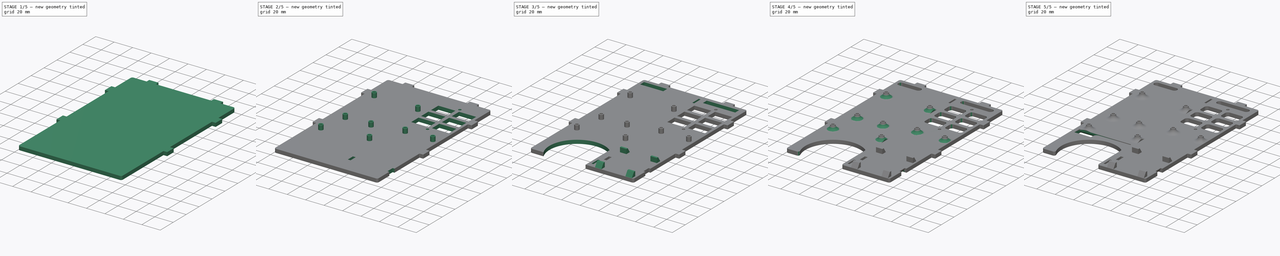
[diagram: build sequence overview — one tinted view per stage of 5, left to right]
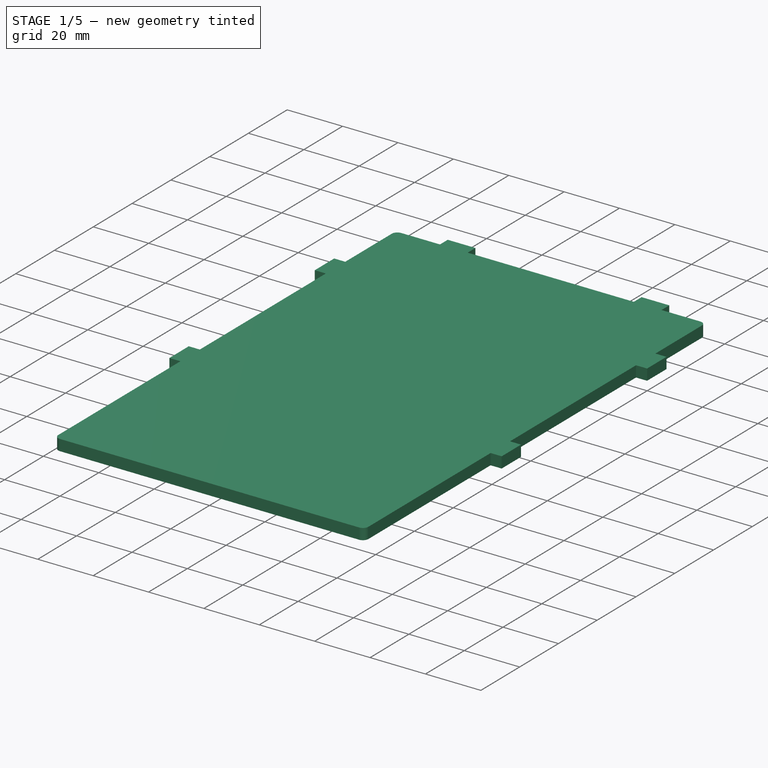
[diagram: stage 1 of 5 — iso view after this stage's code; geometry added in this stage tinted green]
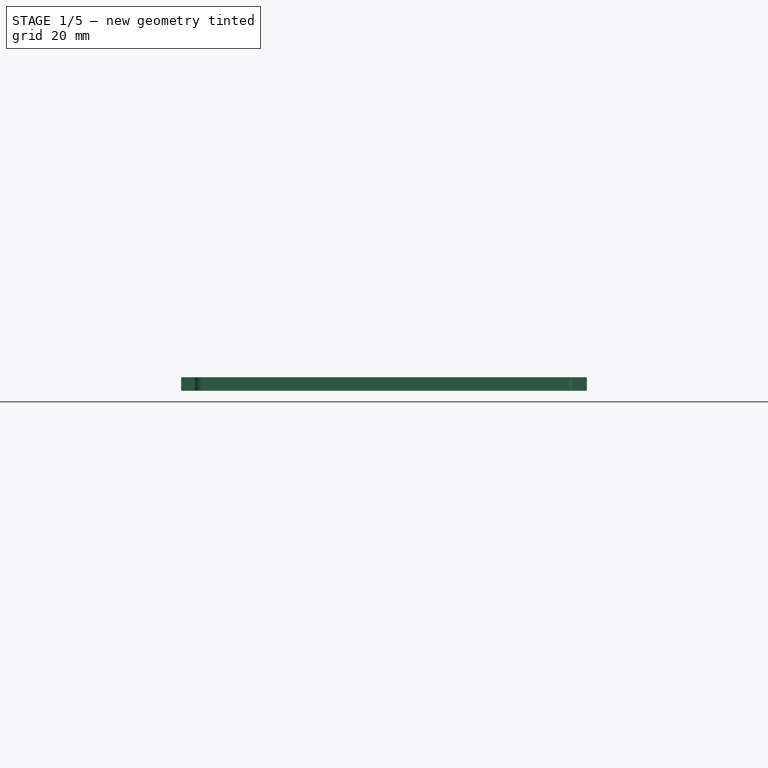
[diagram: stage 1 of 5 — front view after this stage's code; geometry added in this stage tinted green]
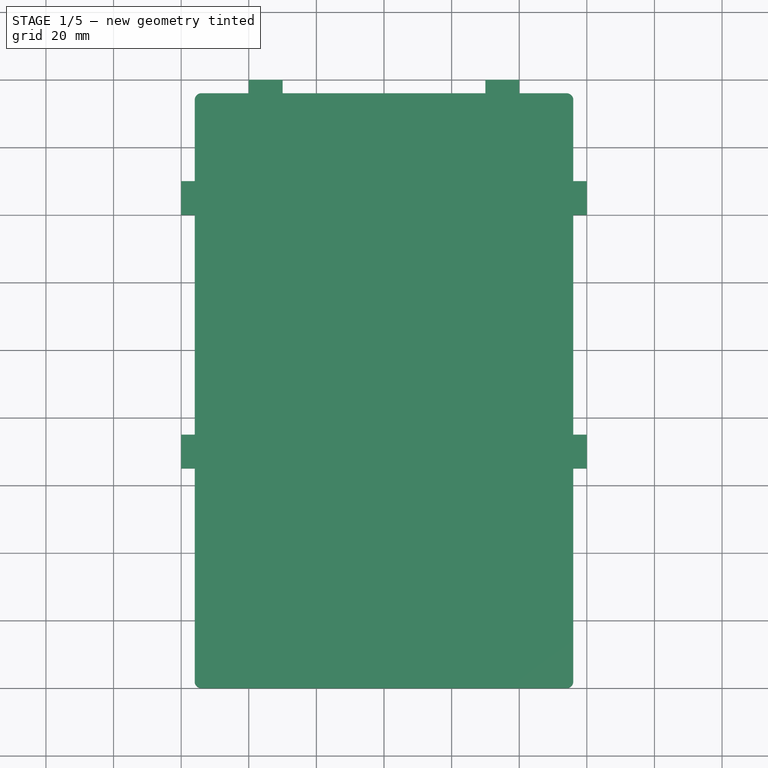
[diagram: stage 1 of 5 — top view after this stage's code; geometry added in this stage tinted green]
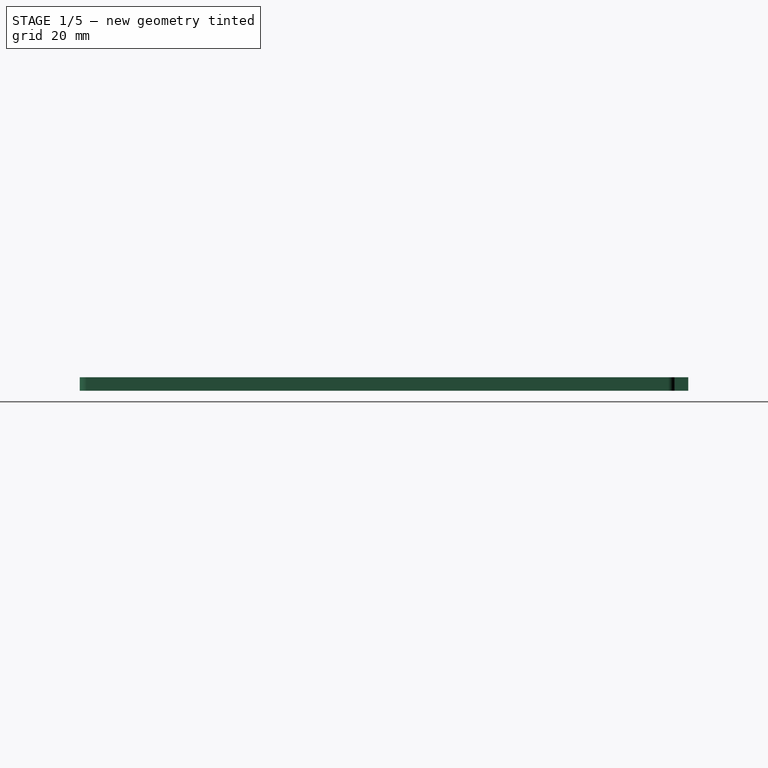
[diagram: stage 1 of 5 — right view after this stage's code; geometry added in this stage tinted green]
FCSTD DOCUMENT  (FreeCAD 0.18R16131 (Git))
Label: HBlock2_1
License: All rights reserved
LicenseURL: http://en.wikipedia.org/wiki/All_rights_reserved
objects: Sketcher::SketchObject×12, PartDesign::Pocket×8, PartDesign::Fillet×8, PartDesign::Plane×6, PartDesign::Pad×4, PartDesign::Draft×1, PartDesign::Body×1, App::Part×1, Part::FeaturePython×1
note: 53 computed .brp shape members not serialized (recipe doc carries the construction recipe); baked Part::Feature solids carry a one-line shape summary decoded from their .brp

FEATURE [Sketcher::SketchObject] Sketch
  MapMode = 5
  Support = -> [XY_Plane001]
  sketch-geometry (7):
    g0: LineSegment [constr] StartX=-60 StartY=0 StartZ=0 EndX=60 EndY=0 EndZ=0
    g1: LineSegment StartX=60 StartY=0 StartZ=0 EndX=60 EndY=120 EndZ=0
    g2: LineSegment StartX=60 StartY=120 StartZ=0 EndX=-60 EndY=120 EndZ=0
    g3: LineSegment StartX=-60 StartY=120 StartZ=0 EndX=-60 EndY=0 EndZ=0
    g4: LineSegment StartX=-60 StartY=0 StartZ=0 EndX=-60 EndY=-60 EndZ=0
    g5: LineSegment StartX=-60 StartY=-60 StartZ=0 EndX=60 EndY=-60 EndZ=0
    g6: LineSegment StartX=60 StartY=-60 StartZ=0 EndX=60 EndY=0 EndZ=0
  constraints (19):
    c: Coincident(g0,g1)
    c: Coincident(g1,g2)
    c: Coincident(g2,g3)
    c: Coincident(g3,g0)
    c: Horizontal(g0)
    c: Vertical(g1)
    c: Vertical(g3)
    c: PointOnObject(g0,g-1)
    c: Symmetric(g2,g1,g-2)
    c: Distance(g2) = 120
    c: Distance(g3) = 120
    c: Coincident(g4,g3)
    c: Vertical(g4)
    c: Coincident(g5,g4)
    c: Horizontal(g5)
    c: Coincident(g6,g5)
    c: Coincident(g6,g1)
    c: Vertical(g6)
    c: Distance(g4) = 60
FEATURE [PartDesign::Pad] Pad
  Length = 4
  Length2 = 100
  Midplane = true
  Profile = -> Sketch
  Type = 0
FEATURE [Sketcher::SketchObject] Sketch004
  MapMode = 5
  Support = -> [XY_Plane001]
  sketch-geometry (30):
    g0: LineSegment StartX=-56 StartY=5 StartZ=0 EndX=-60 EndY=5 EndZ=0
    g1: LineSegment StartX=-60 StartY=5 StartZ=0 EndX=-60 EndY=15 EndZ=0
    g2: LineSegment StartX=-60 StartY=15 StartZ=0 EndX=-56 EndY=15 EndZ=0
    g3: LineSegment StartX=-56 StartY=15 StartZ=0 EndX=-56 EndY=80 EndZ=0
    g4: LineSegment StartX=-56 StartY=80 StartZ=0 EndX=-60 EndY=80 EndZ=0
    g5: LineSegment StartX=-60 StartY=80 StartZ=0 EndX=-60 EndY=90 EndZ=0
    g6: LineSegment StartX=-60 StartY=90 StartZ=0 EndX=-56 EndY=90 EndZ=0
    g7: LineSegment StartX=-56 StartY=90 StartZ=0 EndX=-56 EndY=120 EndZ=0
    g8: LineSegment StartX=-56 StartY=120 StartZ=0 EndX=-86 EndY=120 EndZ=0
    g9: LineSegment StartX=-86 StartY=120 StartZ=0 EndX=-86 EndY=0 EndZ=0
    g10: LineSegment [constr] StartX=-86 StartY=0 StartZ=0 EndX=-56 EndY=0 EndZ=0
    g11: LineSegment StartX=-56 StartY=5 StartZ=0 EndX=-56 EndY=0 EndZ=0
    g12: LineSegment StartX=56 StartY=5 StartZ=0 EndX=60 EndY=5 EndZ=0
    g13: LineSegment StartX=60 StartY=5 StartZ=0 EndX=60 EndY=15 EndZ=0
    g14: LineSegment StartX=60 StartY=15 StartZ=0 EndX=56 EndY=15 EndZ=0
    g15: LineSegment StartX=56 StartY=15 StartZ=0 EndX=56 EndY=80 EndZ=0
    g16: LineSegment StartX=56 StartY=80 StartZ=0 EndX=60 EndY=80 EndZ=0
    g17: LineSegment StartX=60 StartY=80 StartZ=0 EndX=60 EndY=90 EndZ=0
    g18: LineSegment StartX=60 StartY=90 StartZ=0 EndX=56 EndY=90 EndZ=0
    g19: LineSegment StartX=56 StartY=90 StartZ=0 EndX=56 EndY=120 EndZ=0
    g20: LineSegment StartX=56 StartY=120 StartZ=0 EndX=86 EndY=120 EndZ=0
    g21: LineSegment StartX=86 StartY=120 StartZ=0 EndX=86 EndY=0 EndZ=0
    g22: LineSegment [constr] StartX=86 StartY=0 StartZ=0 EndX=56 EndY=0 EndZ=0
    g23: LineSegment StartX=56 StartY=5 StartZ=0 EndX=56 EndY=0 EndZ=0
    g24: LineSegment StartX=-86 StartY=0 StartZ=0 EndX=-86 EndY=-60 EndZ=0
    g25: LineSegment StartX=-86 StartY=-60 StartZ=0 EndX=-56 EndY=-60 EndZ=0
    g26: LineSegment StartX=-56 StartY=-60 StartZ=0 EndX=-56 EndY=0 EndZ=0
    g27: LineSegment StartX=56 StartY=0 StartZ=0 EndX=56 EndY=-60 EndZ=0
    g28: LineSegment StartX=56 StartY=-60 StartZ=0 EndX=86 EndY=-60 EndZ=0
    g29: LineSegment StartX=86 StartY=-60 StartZ=0 EndX=86 EndY=0 EndZ=0
  constraints (87):
    c: Coincident(g1,g0)
    c: Vertical(g1)
    c: Coincident(g2,g1)
    c: Horizontal(g2)
    c: Coincident(g3,g2)
    c: Vertical(g3)
    c: Coincident(g4,g3)
    c: Coincident(g5,g4)
    c: Vertical(g5)
    c: Coincident(g6,g5)
    c: Horizontal(g6)
    c: Coincident(g7,g6)
    c: Vertical(g7)
    c: Coincident(g8,g7)
    c: Horizontal(g8)
    c: Coincident(g9,g8)
    c: PointOnObject(g9,g-1)
    c: Vertical(g9)
    c: Coincident(g10,g9)
    c: Horizontal(g10)
    c: Horizontal(g0)
    c: Coincident(g11,g0)
    c: Coincident(g11,g10)
    c: Vertical(g11)
    c: Horizontal(g4)
    c: Equal(g0,g2)
    c: Equal(g2,g4)
    c: Equal(g4,g6)
    c: Equal(g5,g1)
    c: Distance(g6) = 4
    c: Distance(g5) = 10
    c: Distance(g11) = 5
    c: Distance(g7) = 30
    c: Distance(g8) = 30
    c: Distance(g9) = 120
    c: Coincident(g13,g12)
    c: Vertical(g13)
    c: Coincident(g14,g13)
    c: Horizontal(g14)
    c: Coincident(g15,g14)
    c: Vertical(g15)
    c: Coincident(g16,g15)
    c: Coincident(g17,g16)
    c: Vertical(g17)
    c: Coincident(g18,g17)
    c: Horizontal(g18)
    c: Coincident(g19,g18)
    c: Vertical(g19)
    c: Coincident(g20,g19)
    c: Horizontal(g20)
    c: Coincident(g21,g20)
    c: Vertical(g21)
    c: Coincident(g22,g21)
    c: Horizontal(g22)
    c: Horizontal(g12)
    c: Coincident(g23,g12)
    c: Coincident(g23,g22)
    c: Vertical(g23)
    c: Horizontal(g16)
    c: Equal(g12,g14)
    c: Equal(g14,g16)
    c: Equal(g16,g18)
    c: Equal(g17,g13)
    c: Distance(g18) = 4
    c: Distance(g17) = 10
    c: Distance(g23) = 5
    c: Distance(g19) = 30
    c: Distance(g20) = 30
    c: Distance(g21) = 120
    c: Symmetric(g22,g10,g-2)
    c: Distance(g10,g22) = 112
    c: Coincident(g24,g9)
    c: Vertical(g24)
    c: Coincident(g25,g24)
    c: Horizontal(g25)
    c: Coincident(g26,g25)
    c: Coincident(g26,g11)
    c: Vertical(g26)
    c: Coincident(g27,g23)
    c: Vertical(g27)
    c: Coincident(g28,g27)
    c: Horizontal(g28)
    c: Coincident(g29,g28)
    c: Coincident(g29,g21)
    c: Vertical(g29)
    c: Equal(g26,g27)
    c: Distance(g24) = 60
FEATURE [Sketcher::SketchObject] Sketch005
  MapMode = 5
  Support = -> [XY_Plane001]
  sketch-geometry (12):
    g0: LineSegment StartX=-60 StartY=116 StartZ=0 EndX=-40 EndY=116 EndZ=0
    g1: LineSegment StartX=-40 StartY=116 StartZ=0 EndX=-40 EndY=120 EndZ=0
    g2: LineSegment StartX=-40 StartY=120 StartZ=0 EndX=-30 EndY=120 EndZ=0
    g3: LineSegment StartX=-30 StartY=120 StartZ=0 EndX=-30 EndY=116 EndZ=0
    g4: LineSegment StartX=-30 StartY=116 StartZ=0 EndX=30 EndY=116 EndZ=0
    g5: LineSegment StartX=30 StartY=116 StartZ=0 EndX=30 EndY=120 EndZ=0
    g6: LineSegment StartX=30 StartY=120 StartZ=0 EndX=40 EndY=120 EndZ=0
    g7: LineSegment StartX=40 StartY=120 StartZ=0 EndX=40 EndY=116 EndZ=0
    g8: LineSegment StartX=40 StartY=116 StartZ=0 EndX=60 EndY=116 EndZ=0
    g9: LineSegment StartX=60 StartY=116 StartZ=0 EndX=60 EndY=126 EndZ=0
    g10: LineSegment StartX=60 StartY=126 StartZ=0 EndX=-60 EndY=126 EndZ=0
    g11: LineSegment StartX=-60 StartY=126 StartZ=0 EndX=-60 EndY=116 EndZ=0
  constraints (34):
    c: Horizontal(g0)
    c: Coincident(g1,g0)
    c: Vertical(g1)
    c: Coincident(g2,g1)
    c: Horizontal(g2)
    c: Coincident(g3,g2)
    c: Vertical(g3)
    c: Coincident(g4,g3)
    c: Coincident(g5,g4)
    c: Coincident(g6,g5)
    c: Horizontal(g6)
    c: Coincident(g7,g6)
    c: Vertical(g7)
    c: Coincident(g8,g7)
    c: Horizontal(g8)
    c: Coincident(g9,g8)
    c: Vertical(g9)
    c: Coincident(g10,g9)
    c: Coincident(g11,g10)
    c: Coincident(g11,g0)
    c: Vertical(g5)
    c: Vertical(g11)
    c: Equal(g1,g3)
    c: Equal(g3,g5)
    c: Equal(g5,g7)
    c: Equal(g2,g6)
    c: Distance(g11) = 10
    c: Distance(g1) = 4
    c: Distance(g2) = 10
    c: Symmetric(g3,g4,g-2)
    c: Distance(g4,g3) = 60
    c: Symmetric(g10,g9,g-2)
    c: Distance(g10) = 120
    c: DistanceY(g-1,g0) = 116
FEATURE [PartDesign::Pocket] Pocket001
  BaseFeature = -> Pad
  Length = 5
  Length2 = 100
  Midplane = true
  Profile = -> Sketch005
  Type = 1
FEATURE [PartDesign::Pocket] Pocket
  BaseFeature = -> Pocket001
  Length = 5
  Length2 = 100
  Midplane = true
  Profile = -> Sketch004
  Type = 1
FEATURE [PartDesign::Fillet] Fillet
  Base = -> Pocket [Edge76,Edge85,Edge66,Edge65]
  BaseFeature = -> Pocket
  Radius = 2
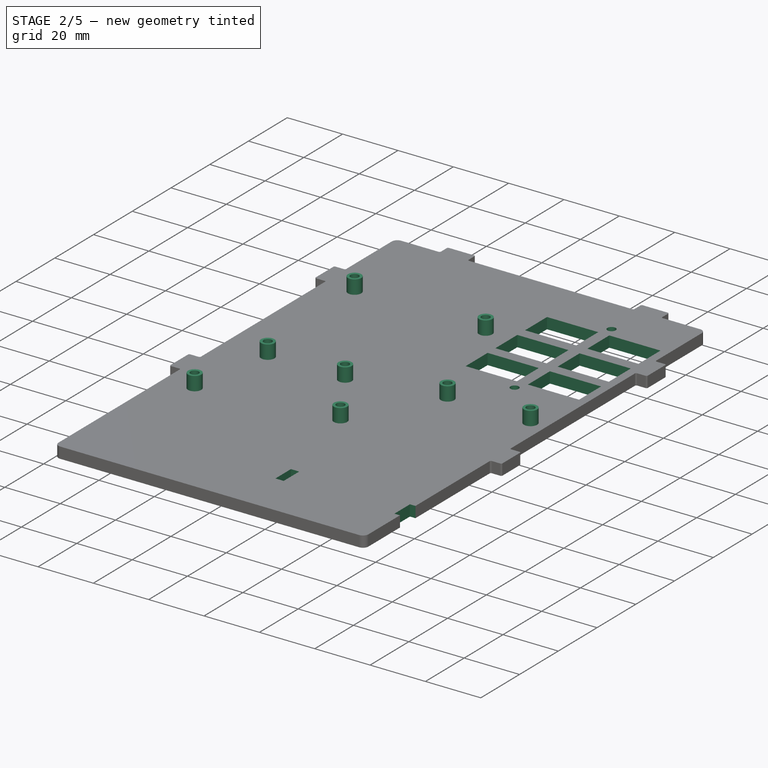
[diagram: stage 2 of 5 — iso view after this stage's code; geometry added in this stage tinted green]
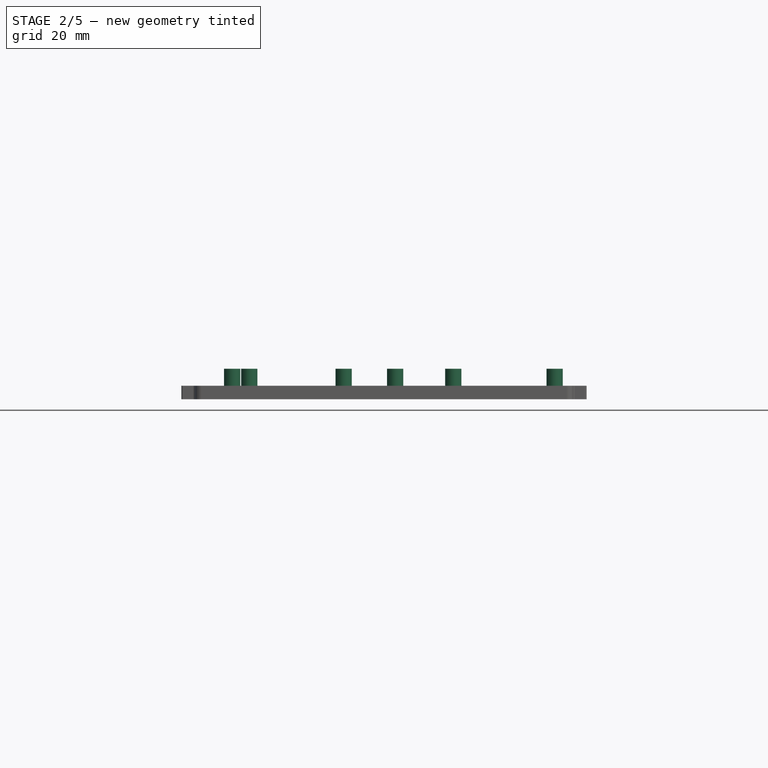
[diagram: stage 2 of 5 — front view after this stage's code; geometry added in this stage tinted green]
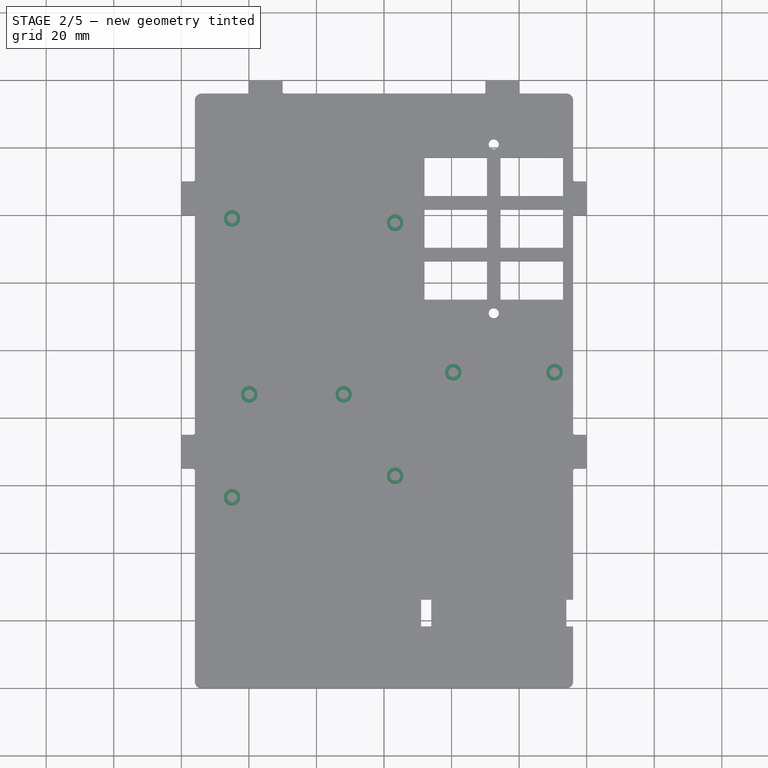
[diagram: stage 2 of 5 — top view after this stage's code; geometry added in this stage tinted green]
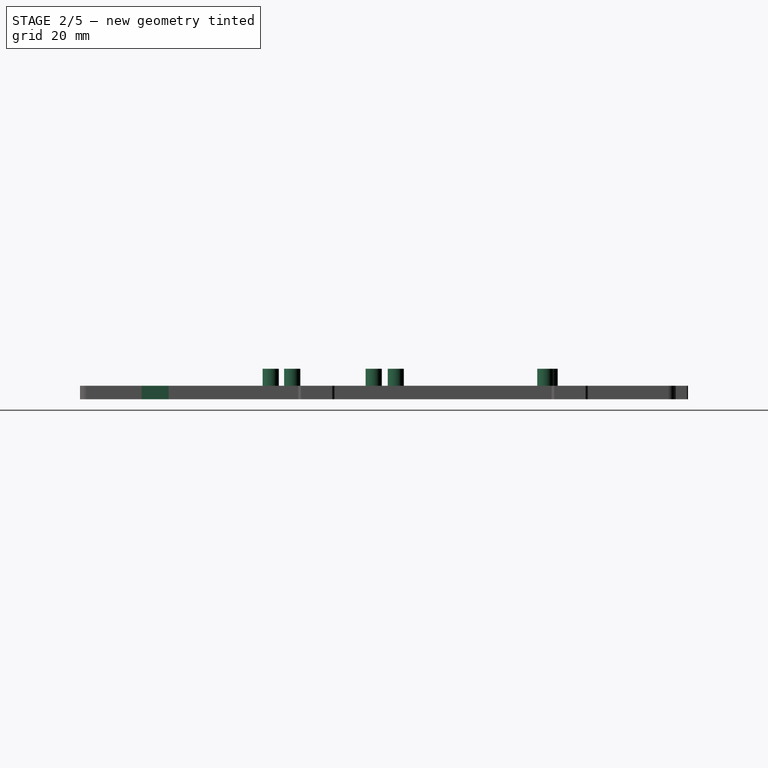
[diagram: stage 2 of 5 — right view after this stage's code; geometry added in this stage tinted green]
FEATURE [PartDesign::Fillet] Fillet001
  Base = -> Fillet [Edge49,Edge53,Edge56,Edge61,Edge65,Edge69,Edge72,Edge77,Edge89,Edge93,Edge96,Edge101,Edge99,Edge95,Edge91,Edge87,Edge75,Edge71,Edge67,Edge63,Edge59,Edge55,Edge51,Edge47]
  BaseFeature = -> Fillet
  Radius = 0.5
FEATURE [PartDesign::Plane] DatumPlane  label="AtmegaPlane"
  AttachmentOffset = pos=(-47.5,93,2) rot=(0,0,-1;1.5708rad)
  Length = 209.394
  MapMode = 5
  Placement = pos=(-47.5,93,2) rot=(0,0,-1;1.5708rad)
  ResizeMode = 0
  Support = -> [XY_Plane001]
  Width = 149.394
FEATURE [Sketcher::SketchObject] Sketch006  label="AtmegaSketch"
  MapMode = 5
  Placement = pos=(-47.5,93,2) rot=(0,0,-1;1.5708rad)
  Support = -> [DatumPlane]
  sketch-geometry (19):
    g0: LineSegment [constr] StartX=0 StartY=0 StartZ=0 EndX=101.6 EndY=0 EndZ=0
    g1: LineSegment [constr] StartX=101.6 StartY=0 StartZ=0 EndX=101.6 EndY=53.34 EndZ=0
    g2: LineSegment [constr] StartX=101.6 StartY=53.34 StartZ=0 EndX=0 EndY=53.34 EndZ=0
    g3: LineSegment [constr] StartX=0 StartY=53.34 StartZ=0 EndX=0 EndY=0 EndZ=0
    g4: Circle CenterX=13.97 CenterY=2.54 CenterZ=0 NormalX=0 NormalY=0 NormalZ=1 AngleXU=0 Radius=1.5
    g5: Circle CenterX=15.24 CenterY=50.8 CenterZ=0 NormalX=0 NormalY=0 NormalZ=1 AngleXU=0 Radius=1.5
    g6: Circle CenterX=90.17 CenterY=50.8 CenterZ=0 NormalX=0 NormalY=0 NormalZ=1 AngleXU=0 Radius=1.5
    g7: Circle CenterX=96.52 CenterY=2.54 CenterZ=0 NormalX=0 NormalY=0 NormalZ=1 AngleXU=0 Radius=1.5
    g8: Circle CenterX=66.04 CenterY=35.56 CenterZ=0 NormalX=0 NormalY=0 NormalZ=1 AngleXU=0 Radius=1.5
    g9: Circle CenterX=66.04 CenterY=7.62 CenterZ=0 NormalX=0 NormalY=0 NormalZ=1 AngleXU=0 Radius=1.5
    g10: LineSegment [constr] StartX=66.04 StartY=35.56 StartZ=0 EndX=66.04 EndY=7.62 EndZ=0
    g11: LineSegment [constr] StartX=15.24 StartY=50.8 StartZ=0 EndX=90.17 EndY=50.8 EndZ=0
    g12: LineSegment [constr] StartX=13.97 StartY=2.54 StartZ=0 EndX=96.52 EndY=2.54 EndZ=0
    g13: Circle CenterX=15.24 CenterY=50.8 CenterZ=0 NormalX=0 NormalY=0 NormalZ=1 AngleXU=0 Radius=2.4
    g14: Circle CenterX=13.97 CenterY=2.54 CenterZ=0 NormalX=0 NormalY=0 NormalZ=1 AngleXU=0 Radius=2.4
    g15: Circle CenterX=96.52 CenterY=2.54 CenterZ=0 NormalX=0 NormalY=0 NormalZ=1 AngleXU=0 Radius=2.4
    g16: Circle CenterX=66.04 CenterY=7.62 CenterZ=0 NormalX=0 NormalY=0 NormalZ=1 AngleXU=0 Radius=2.4
    g17: Circle CenterX=66.04 CenterY=35.56 CenterZ=0 NormalX=0 NormalY=0 NormalZ=1 AngleXU=0 Radius=2.4
    g18: Circle CenterX=90.17 CenterY=50.8 CenterZ=0 NormalX=0 NormalY=0 NormalZ=1 AngleXU=0 Radius=2.4
  constraints (47):
    c: Coincident(g0,g1)
    c: Coincident(g1,g2)
    c: Coincident(g2,g3)
    c: Coincident(g3,g0)
    c: Horizontal(g0)
    c: Horizontal(g2)
    c: Vertical(g1)
    c: Vertical(g3)
    c: Coincident(g0,g-1)
    c: Distance(g0) = 101.6
    c: Distance(g3) = 53.34
    c: Radius(g5) = 1.5
    c: Equal(g5,g8)
    c: Equal(g5,g6)
    c: Equal(g5,g9)
    c: Equal(g5,g7)
    c: Equal(g5,g4)
    c: DistanceX(g-2,g4) = 13.97
    c: DistanceX(g4,g5) = 1.27
    c: DistanceX(g5,g8) = 50.8
    c: Coincident(g10,g8)
    c: Coincident(g10,g9)
    c: Vertical(g10)
    c: DistanceX(g8,g6) = 24.13
    c: Coincident(g11,g5)
    c: Coincident(g11,g6)
    c: Horizontal(g11)
    c: Coincident(g12,g4)
    c: Coincident(g12,g7)
    c: Horizontal(g12)
    c: DistanceY(g8,g6) = 15.24
    c: Distance(g10) = 27.94
    c: DistanceY(g7,g9) = 5.08
    c: DistanceY(g0,g7) = 2.54
    c: DistanceX(g-2,g7) = 96.52
    c: Coincident(g13,g5)
    c: Coincident(g14,g4)
    c: Coincident(g15,g7)
    c: Coincident(g16,g9)
    c: Coincident(g17,g8)
    c: Coincident(g18,g6)
    c: Equal(g18,g17)
    c: Equal(g17,g16)
    c: Equal(g16,g15)
    c: Equal(g15,g14)
    c: Equal(g14,g13)
    c: Radius(g14) = 2.4
FEATURE [PartDesign::Pad] Pad001  label="AtmegaPad"
  BaseFeature = -> Fillet001
  Length = 5
  Length2 = 100
  Profile = -> Sketch006
  Type = 0
FEATURE [PartDesign::Plane] DatumPlane001  label="RelayPlane"
  AttachmentOffset = pos=(10,106,0) rot=(0,0,-1;1.5708rad)
  Length = 209.394
  MapMode = 5
  Placement = pos=(10,106,0) rot=(0,0,-1;1.5708rad)
  ResizeMode = 0
  Support = -> [XY_Plane001]
  Width = 149.394
FEATURE [Sketcher::SketchObject] Sketch007  label="RelaySketch"
  MapMode = 5
  Placement = pos=(10,106,0) rot=(0,0,-1;1.5708rad)
  Support = -> [DatumPlane001]
  sketch-geometry (37):
    g0: LineSegment [constr] StartX=0 StartY=0 StartZ=0 EndX=60 EndY=0 EndZ=0
    g1: LineSegment [constr] StartX=60 StartY=0 StartZ=0 EndX=60 EndY=45 EndZ=0
    g2: LineSegment [constr] StartX=60 StartY=45 StartZ=0 EndX=0 EndY=45 EndZ=0
    g3: LineSegment [constr] StartX=0 StartY=45 StartZ=0 EndX=0 EndY=0 EndZ=0
    g4: Circle CenterX=5 CenterY=22.5 CenterZ=0 NormalX=0 NormalY=0 NormalZ=1 AngleXU=0 Radius=1.5
    g5: Circle CenterX=55 CenterY=22.5 CenterZ=0 NormalX=0 NormalY=0 NormalZ=1 AngleXU=0 Radius=1.5
    g6: LineSegment [constr] StartX=5 StartY=22.5 StartZ=0 EndX=55 EndY=22.5 EndZ=0
    g7: LineSegment StartX=9 StartY=43 StartZ=0 EndX=20.3333 EndY=43 EndZ=0
    g8: LineSegment StartX=20.3333 StartY=43 StartZ=0 EndX=20.3333 EndY=24.5 EndZ=0
    g9: LineSegment StartX=20.3333 StartY=24.5 StartZ=0 EndX=9 EndY=24.5 EndZ=0
    g10: LineSegment StartX=9 StartY=24.5 StartZ=0 EndX=9 EndY=43 EndZ=0
    g11: LineSegment StartX=24.3333 StartY=43 StartZ=0 EndX=35.6667 EndY=43 EndZ=0
    g12: LineSegment StartX=35.6667 StartY=43 StartZ=0 EndX=35.6667 EndY=24.5 EndZ=0
    g13: LineSegment StartX=35.6667 StartY=24.5 StartZ=0 EndX=24.3333 EndY=24.5 EndZ=0
    g14: LineSegment StartX=24.3333 StartY=24.5 StartZ=0 EndX=24.3333 EndY=43 EndZ=0
    g15: LineSegment StartX=39.6667 StartY=43 StartZ=0 EndX=51 EndY=43 EndZ=0
    g16: LineSegment StartX=51 StartY=43 StartZ=0 EndX=51 EndY=24.5 EndZ=0
    g17: LineSegment StartX=51 StartY=24.5 StartZ=0 EndX=39.6667 EndY=24.5 EndZ=0
    g18: LineSegment StartX=39.6667 StartY=24.5 StartZ=0 EndX=39.6667 EndY=43 EndZ=0
    g19: LineSegment StartX=9 StartY=20.5 StartZ=0 EndX=20.3333 EndY=20.5 EndZ=0
    g20: LineSegment StartX=20.3333 StartY=20.5 StartZ=0 EndX=20.3333 EndY=2 EndZ=0
    g21: LineSegment StartX=20.3333 StartY=2 StartZ=0 EndX=9 EndY=2 EndZ=0
    g22: LineSegment StartX=9 StartY=2 StartZ=0 EndX=9 EndY=20.5 EndZ=0
    g23: LineSegment StartX=24.3333 StartY=20.5 StartZ=0 EndX=35.6667 EndY=20.5 EndZ=0
    g24: LineSegment StartX=35.6667 StartY=20.5 StartZ=0 EndX=35.6667 EndY=2 EndZ=0
    g25: LineSegment StartX=35.6667 StartY=2 StartZ=0 EndX=24.3333 EndY=2 EndZ=0
    g26: LineSegment StartX=24.3333 StartY=2 StartZ=0 EndX=24.3333 EndY=20.5 EndZ=0
    g27: LineSegment StartX=39.6667 StartY=20.5 StartZ=0 EndX=51 EndY=20.5 EndZ=0
    g28: LineSegment StartX=51 StartY=20.5 StartZ=0 EndX=51 EndY=2 EndZ=0
    g29: LineSegment StartX=51 StartY=2 StartZ=0 EndX=39.6667 EndY=2 EndZ=0
    g30: LineSegment StartX=39.6667 StartY=2 StartZ=0 EndX=39.6667 EndY=20.5 EndZ=0
    g31: LineSegment [constr] StartX=20.3333 StartY=24.5 StartZ=0 EndX=24.3333 EndY=24.5 EndZ=0
    g32: LineSegment [constr] StartX=35.6667 StartY=24.5 StartZ=0 EndX=39.6667 EndY=24.5 EndZ=0
    g33: LineSegment [constr] StartX=35.6667 StartY=20.5 StartZ=0 EndX=39.6667 EndY=20.5 EndZ=0
    g34: LineSegment [constr] StartX=20.3333 StartY=20.5 StartZ=0 EndX=24.3333 EndY=20.5 EndZ=0
    g35: LineSegment [constr] StartX=35.6667 StartY=20.5 StartZ=0 EndX=35.6667 EndY=22.5 EndZ=0
    g36: LineSegment [constr] StartX=35.6667 StartY=2 StartZ=0 EndX=35.6667 EndY=0 EndZ=0
  constraints (104):
    c: Coincident(g0,g1)
    c: Coincident(g1,g2)
    c: Coincident(g2,g3)
    c: Coincident(g3,g0)
    c: Horizontal(g0)
    c: Horizontal(g2)
    c: Vertical(g1)
    c: Vertical(g3)
    c: Coincident(g0,g-1)
    c: Coincident(g6,g4)
    c: Coincident(g6,g5)
    c: Horizontal(g6)
    c: Equal(g4,g5)
    c: Radius(g4) = 1.5
    c: Distance(g3) = 45
    c: Distance(g2) = 60
    c: Distance(g6) = 50
    c: Distance(g4,g3) = 5
    c: Distance(g4,g0) = 22.5
    c: Coincident(g7,g8)
    c: Coincident(g8,g9)
    c: Coincident(g9,g10)
    c: Coincident(g10,g7)
    c: Horizontal(g7)
    c: Horizontal(g9)
    c: Vertical(g8)
    c: Vertical(g10)
    c: Coincident(g11,g12)
    c: Coincident(g12,g13)
    c: Coincident(g13,g14)
    c: Coincident(g14,g11)
    c: Horizontal(g11)
    c: Horizontal(g13)
    c: Vertical(g12)
    c: Vertical(g14)
    c: Coincident(g15,g16)
    c: Coincident(g16,g17)
    c: Coincident(g17,g18)
    c: Coincident(g18,g15)
    c: Horizontal(g15)
    c: Horizontal(g17)
    c: Vertical(g16)
    c: Vertical(g18)
    c: Coincident(g19,g20)
    c: Coincident(g20,g21)
    c: Coincident(g21,g22)
    c: Coincident(g22,g19)
    c: Horizontal(g19)
    c: Horizontal(g21)
    c: Vertical(g20)
    c: Vertical(g22)
    c: Coincident(g23,g24)
    c: Coincident(g24,g25)
    c: Coincident(g25,g26)
    c: Coincident(g26,g23)
    c: Horizontal(g23)
    c: Horizontal(g25)
    c: Vertical(g24)
    c: Vertical(g26)
    c: Coincident(g27,g28)
    c: Coincident(g28,g29)
    c: Coincident(g29,g30)
    c: Coincident(g30,g27)
    c: Horizontal(g27)
    c: Horizontal(g29)
    c: Vertical(g28)
    c: Vertical(g30)
    c: Equal(g19,g9)
    c: Equal(g9,g13)
    c: Equal(g13,g23)
    c: Equal(g23,g17)
    c: Equal(g17,g27)
    c: Equal(g10,g22)
    c: Equal(g22,g14)
    c: Equal(g14,g26)
    c: Equal(g26,g18)
    c: Equal(g18,g30)
    c: Coincident(g31,g8)
    c: Coincident(g31,g13)
    c: Horizontal(g31)
    c: Coincident(g32,g12)
    c: Coincident(g32,g17)
    c: Coincident(g33,g23)
    c: Coincident(g33,g27)
    c: Coincident(g34,g19)
    c: Coincident(g34,g23)
    c: Horizontal(g34)
    c: Horizontal(g32)
    c: Horizontal(g33)
    c: Equal(g31,g32)
    c: Equal(g32,g33)
    c: Equal(g33,g34)
    c: Symmetric(g19,g9,g6)
    c: Coincident(g35,g23)
    c: PointOnObject(g35,g6)
    c: Vertical(g35)
    c: Coincident(g36,g24)
    c: PointOnObject(g36,g0)
    c: Vertical(g36)
    c: Equal(g35,g36)
    c: Distance(g34) = 4
    c: Distance(g36) = 2
    c: DistanceX(g4,g19) = 4
    c: DistanceX(g27,g5) = 4
FEATURE [PartDesign::Pocket] Pocket002  label="RelayPocket"
  BaseFeature = -> Pad001
  Length = 5
  Length2 = 100
  Midplane = true
  Profile = -> Sketch007
  Type = 1
FEATURE [PartDesign::Plane] DatumPlane002  label="VRPlane"
  AttachmentOffset = pos=(18,19,2) rot=(0,0,1;0rad)
  Length = 149.394
  MapMode = 5
  Placement = pos=(18,19,2) rot=(0,0,1;0rad)
  ResizeMode = 0
  Support = -> [XY_Plane001]
  Width = 209.394
FEATURE [Sketcher::SketchObject] Sketch008  label="VRSketch"
  MapMode = 5
  Placement = pos=(18,19,2) rot=(0,0,1;0rad)
  Support = -> [DatumPlane002]
  sketch-geometry (9):
    g0: LineSegment [constr] StartX=0 StartY=0 StartZ=0 EndX=35 EndY=0 EndZ=0
    g1: LineSegment [constr] StartX=35 StartY=0 StartZ=0 EndX=35 EndY=17 EndZ=0
    g2: LineSegment [constr] StartX=35 StartY=17 StartZ=0 EndX=0 EndY=17 EndZ=0
    g3: LineSegment [constr] StartX=0 StartY=17 StartZ=0 EndX=0 EndY=0 EndZ=0
    g4: Circle CenterX=2.5 CenterY=14.5 CenterZ=0 NormalX=0 NormalY=0 NormalZ=1 AngleXU=0 Radius=1.5
    g5: Circle CenterX=32.5 CenterY=14.5 CenterZ=0 NormalX=0 NormalY=0 NormalZ=1 AngleXU=0 Radius=1.5
    g6: LineSegment [constr] StartX=2.5 StartY=14.5 StartZ=0 EndX=32.5 EndY=14.5 EndZ=0
    g7: Circle CenterX=2.5 CenterY=14.5 CenterZ=0 NormalX=0 NormalY=0 NormalZ=1 AngleXU=0 Radius=2.4
    g8: Circle CenterX=32.5 CenterY=14.5 CenterZ=0 NormalX=0 NormalY=0 NormalZ=1 AngleXU=0 Radius=2.4
  constraints (23):
    c: Coincident(g0,g1)
    c: Coincident(g1,g2)
    c: Coincident(g2,g3)
    c: Coincident(g3,g0)
    c: Horizontal(g0)
    c: Horizontal(g2)
    c: Vertical(g1)
    c: Vertical(g3)
    c: Coincident(g0,g-1)
    c: Distance(g3) = 17
    c: Distance(g2) = 35
    c: Coincident(g6,g4)
    c: Coincident(g6,g5)
    c: Horizontal(g6)
    c: Distance(g6) = 30
    c: Equal(g4,g5)
    c: Radius(g4) = 1.5
    c: Distance(g4,g2) = 2.5
    c: Distance(g4,g3) = 2.5
    c: Coincident(g7,g4)
    c: Coincident(g8,g5)
    c: Equal(g7,g8)
    c: Radius(g7) = 2.4
FEATURE [PartDesign::Pad] Pad002  label="VRPad"
  BaseFeature = -> Pocket002
  Length = 5
  Length2 = 100
  Profile = -> Sketch008
  Type = 0
FEATURE [PartDesign::Plane] DatumPlane003  label="TFPlane"
  AttachmentOffset = pos=(14,-21,2) rot=(0,0,-1;1.5708rad)
  Length = 209.394
  MapMode = 5
  Placement = pos=(14,-21,2) rot=(0,0,-1;1.5708rad)
  ResizeMode = 0
  Support = -> [XY_Plane001]
  Width = 149.394
FEATURE [Sketcher::SketchObject] Sketch009  label="TFHolesSketch"
  MapMode = 5
  Placement = pos=(14,-21,2) rot=(0,0,-1;1.5708rad)
  Support = -> [DatumPlane003]
  sketch-geometry (15):
    g0: LineSegment [constr] StartX=0 StartY=0 StartZ=0 EndX=33.5 EndY=0 EndZ=0
    g1: LineSegment [constr] StartX=33.5 StartY=0 StartZ=0 EndX=33.5 EndY=40 EndZ=0
    g2: LineSegment [constr] StartX=33.5 StartY=40 StartZ=0 EndX=0 EndY=40 EndZ=0
    g3: LineSegment [constr] StartX=0 StartY=40 StartZ=0 EndX=0 EndY=0 EndZ=0
    g4: LineSegment StartX=12.75 StartY=40 StartZ=0 EndX=20.75 EndY=40 EndZ=0
    g5: LineSegment StartX=20.75 StartY=40 StartZ=0 EndX=20.75 EndY=43 EndZ=0
    g6: LineSegment StartX=20.75 StartY=43 StartZ=0 EndX=12.75 EndY=43 EndZ=0
    g7: LineSegment StartX=12.75 StartY=43 StartZ=0 EndX=12.75 EndY=40 EndZ=0
    g8: LineSegment StartX=12.75 StartY=0 StartZ=0 EndX=20.75 EndY=0 EndZ=0
    g9: LineSegment StartX=20.75 StartY=0 StartZ=0 EndX=20.75 EndY=-3 EndZ=0
    g10: LineSegment StartX=20.75 StartY=-3 StartZ=0 EndX=12.75 EndY=-3 EndZ=0
    g11: LineSegment StartX=12.75 StartY=-3 StartZ=0 EndX=12.75 EndY=0 EndZ=0
    g12: LineSegment [constr] StartX=12.75 StartY=40 StartZ=0 EndX=0 EndY=0 EndZ=0
    g13: LineSegment [constr] StartX=20.75 StartY=40 StartZ=0 EndX=33.5 EndY=0 EndZ=0
    g14: LineSegment [constr] StartX=12.75 StartY=40 StartZ=0 EndX=12.75 EndY=0 EndZ=0
  constraints (41):
    c: Coincident(g0,g1)
    c: Coincident(g1,g2)
    c: Coincident(g2,g3)
    c: Coincident(g3,g0)
    c: Horizontal(g0)
    c: Horizontal(g2)
    c: Vertical(g1)
    c: Vertical(g3)
    c: Distance(g3) = 40
    c: Distance(g2) = 33.5
    c: Coincident(g0,g-1)
    c: Coincident(g4,g5)
    c: Coincident(g5,g6)
    c: Coincident(g6,g7)
    c: Coincident(g7,g4)
    c: Horizontal(g4)
    c: Horizontal(g6)
    c: Vertical(g5)
    c: Vertical(g7)
    c: PointOnObject(g4,g2)
    c: Coincident(g8,g9)
    c: Coincident(g9,g10)
    c: Coincident(g10,g11)
    c: Coincident(g11,g8)
    c: Horizontal(g8)
    c: Horizontal(g10)
    c: Vertical(g9)
    c: Vertical(g11)
    c: PointOnObject(g8,g0)
    c: Equal(g4,g8)
    c: Distance(g8) = 8
    c: Equal(g11,g7)
    c: Distance(g7) = 3
    c: Coincident(g12,g4)
    c: Coincident(g12,g-1)
    c: Coincident(g13,g4)
    c: Coincident(g13,g0)
    c: Equal(g12,g13)
    c: Coincident(g14,g4)
    c: Coincident(g14,g8)
    c: Vertical(g14)
FEATURE [PartDesign::Pocket] Pocket003  label="TFHolesPocket"
  BaseFeature = -> Pad002
  Length = 5
  Length2 = 100
  Profile = -> Sketch009
  Type = 1
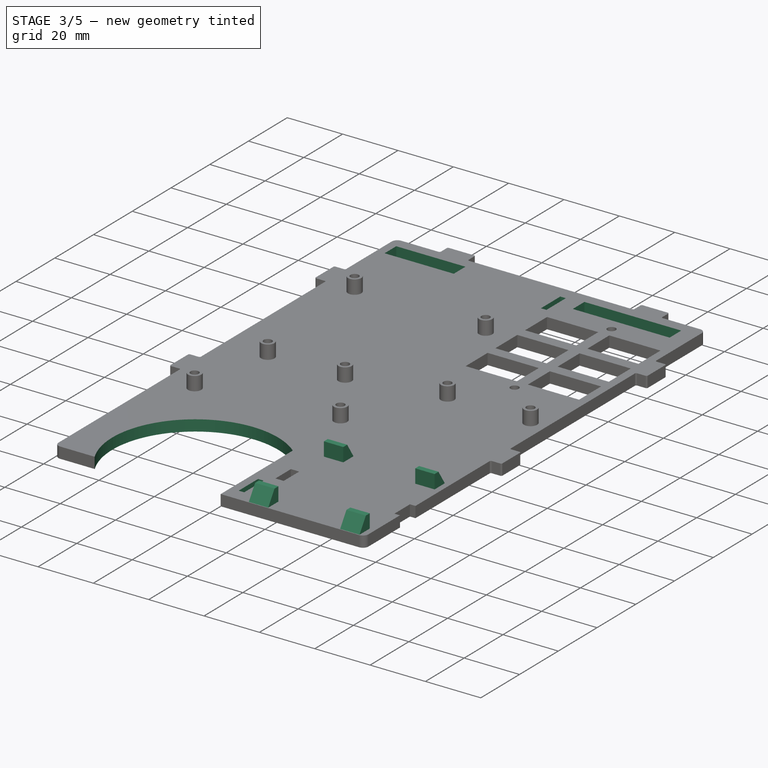
[diagram: stage 3 of 5 — iso view after this stage's code; geometry added in this stage tinted green]
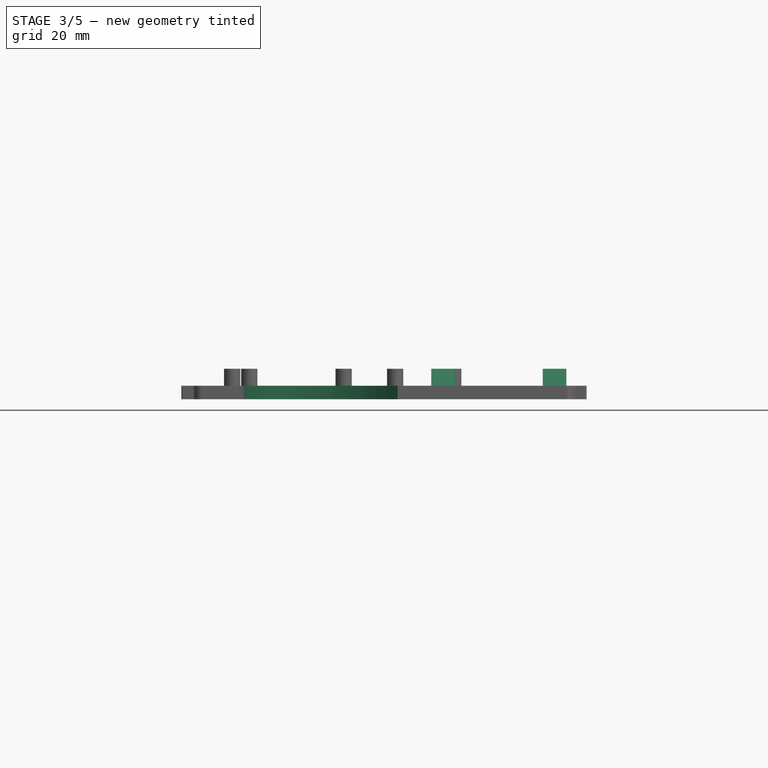
[diagram: stage 3 of 5 — front view after this stage's code; geometry added in this stage tinted green]
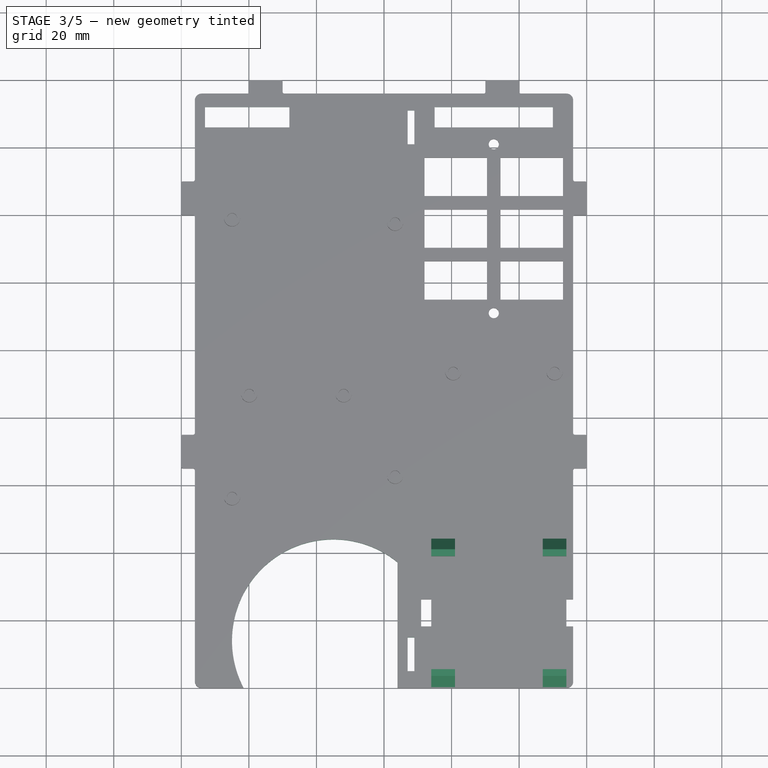
[diagram: stage 3 of 5 — top view after this stage's code; geometry added in this stage tinted green]
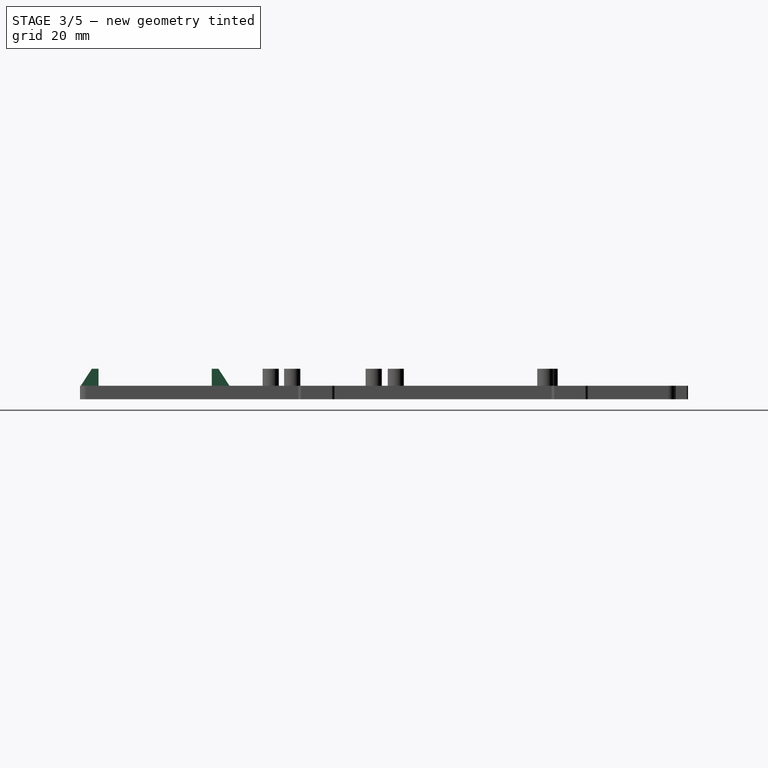
[diagram: stage 3 of 5 — right view after this stage's code; geometry added in this stage tinted green]
FEATURE [Sketcher::SketchObject] Sketch010  label="TFClipSketch"
  MapMode = 5
  Placement = pos=(14,-21,2) rot=(0,0,-1;1.5708rad)
  Support = -> [DatumPlane003]
  sketch-geometry (20):
    g0: LineSegment [constr] StartX=0 StartY=0 StartZ=0 EndX=33.5 EndY=0 EndZ=0
    g1: LineSegment [constr] StartX=33.5 StartY=0 StartZ=0 EndX=33.5 EndY=40 EndZ=0
    g2: LineSegment [constr] StartX=33.5 StartY=40 StartZ=0 EndX=0 EndY=40 EndZ=0
    g3: LineSegment [constr] StartX=0 StartY=40 StartZ=0 EndX=0 EndY=0 EndZ=0
    g4: LineSegment StartX=0 StartY=40 StartZ=0 EndX=-2 EndY=40 EndZ=0
    g5: LineSegment StartX=-2 StartY=40 StartZ=0 EndX=-2 EndY=33 EndZ=0
    g6: LineSegment StartX=-2 StartY=33 StartZ=0 EndX=0 EndY=33 EndZ=0
    g7: LineSegment StartX=0 StartY=33 StartZ=0 EndX=0 EndY=40 EndZ=0
    g8: LineSegment StartX=0 StartY=0 StartZ=0 EndX=-2 EndY=0 EndZ=0
    g9: LineSegment StartX=-2 StartY=0 StartZ=0 EndX=-2 EndY=7 EndZ=0
    g10: LineSegment StartX=-2 StartY=7 StartZ=0 EndX=0 EndY=7 EndZ=0
    g11: LineSegment StartX=0 StartY=7 StartZ=0 EndX=0 EndY=0 EndZ=0
    g12: LineSegment StartX=33.5 StartY=40 StartZ=0 EndX=35.5 EndY=40 EndZ=0
    g13: LineSegment StartX=35.5 StartY=40 StartZ=0 EndX=35.5 EndY=33 EndZ=0
    g14: LineSegment StartX=35.5 StartY=33 StartZ=0 EndX=33.5 EndY=33 EndZ=0
    g15: LineSegment StartX=33.5 StartY=33 StartZ=0 EndX=33.5 EndY=40 EndZ=0
    g16: LineSegment StartX=33.5 StartY=0 StartZ=0 EndX=35.5 EndY=0 EndZ=0
    g17: LineSegment StartX=35.5 StartY=0 StartZ=0 EndX=35.5 EndY=7 EndZ=0
    g18: LineSegment StartX=35.5 StartY=7 StartZ=0 EndX=33.5 EndY=7 EndZ=0
    g19: LineSegment StartX=33.5 StartY=7 StartZ=0 EndX=33.5 EndY=0 EndZ=0
  constraints (55):
    c: Coincident(g0,g1)
    c: Coincident(g1,g2)
    c: Coincident(g2,g3)
    c: Coincident(g3,g0)
    c: Horizontal(g0)
    c: Horizontal(g2)
    c: Vertical(g1)
    c: Vertical(g3)
    c: Coincident(g0,g-1)
    c: Distance(g2) = 33.5
    c: Distance(g1) = 40
    c: Coincident(g4,g5)
    c: Coincident(g5,g6)
    c: Coincident(g6,g7)
    c: Coincident(g7,g4)
    c: Horizontal(g4)
    c: Horizontal(g6)
    c: Vertical(g5)
    c: Vertical(g7)
    c: Coincident(g4,g2)
    c: Coincident(g8,g9)
    c: Coincident(g9,g10)
    c: Coincident(g10,g11)
    c: Coincident(g11,g8)
    c: Horizontal(g8)
    c: Horizontal(g10)
    c: Vertical(g9)
    c: Vertical(g11)
    c: Coincident(g8,g-1)
    c: Coincident(g12,g13)
    c: Coincident(g13,g14)
    c: Coincident(g14,g15)
    c: Coincident(g15,g12)
    c: Horizontal(g12)
    c: Horizontal(g14)
    c: Vertical(g13)
    c: Vertical(g15)
    c: Coincident(g12,g1)
    c: Coincident(g16,g17)
    c: Coincident(g17,g18)
    c: Coincident(g18,g19)
    c: Coincident(g19,g16)
    c: Horizontal(g16)
    c: Horizontal(g18)
    c: Vertical(g17)
    c: Vertical(g19)
    c: Coincident(g16,g0)
    c: Equal(g10,g18)
    c: Equal(g18,g14)
    c: Equal(g14,g6)
    c: Equal(g5,g9)
    c: Equal(g9,g17)
    c: Equal(g17,g13)
    c: Distance(g5) = 7
    c: Distance(g4) = 2
FEATURE [PartDesign::Pad] Pad003  label="TFClipPad"
  BaseFeature = -> Pocket003
  Length = 5
  Length2 = 100
  Profile = -> Sketch010
  Type = 0
FEATURE [PartDesign::Draft] Draft  label="TFDraft"
  Angle = 33
  Base = -> Pad003 [Face102,Face99,Face106,Face112]
  BaseFeature = -> Pad003
  NeutralPlane = -> Pad003 [Face122]
FEATURE [PartDesign::Plane] DatumPlane004  label="SeparatorPlane"
  AttachmentOffset = pos=(7,-60,2) rot=(0,0,1;0rad)
  Length = 149.394
  MapMode = 5
  Placement = pos=(7,-60,2) rot=(0,0,1;0rad)
  ResizeMode = 0
  Support = -> [XY_Plane001]
  Width = 209.394
FEATURE [Sketcher::SketchObject] Sketch011  label="SeparatorCutSketch"
  MapMode = 5
  Placement = pos=(7,-60,2) rot=(0,0,1;0rad)
  Support = -> [DatumPlane004]
  sketch-geometry (4):
    g0: LineSegment StartX=0 StartY=0 StartZ=0 EndX=4 EndY=0 EndZ=0
    g1: LineSegment StartX=4 StartY=0 StartZ=0 EndX=4 EndY=176 EndZ=0
    g2: LineSegment StartX=4 StartY=176 StartZ=0 EndX=0 EndY=176 EndZ=0
    g3: LineSegment StartX=0 StartY=176 StartZ=0 EndX=0 EndY=0 EndZ=0
  constraints (11):
    c: Coincident(g0,g1)
    c: Coincident(g1,g2)
    c: Coincident(g2,g3)
    c: Coincident(g3,g0)
    c: Horizontal(g0)
    c: Horizontal(g2)
    c: Vertical(g1)
    c: Vertical(g3)
    c: Coincident(g0,g-1)
    c: Distance(g2) = 4
    c: Distance(g3) = 176
FEATURE [Sketcher::SketchObject] Sketch012  label="SeparatorClipHolesSketch"
  MapMode = 5
  Placement = pos=(7,-60,2) rot=(0,0,1;0rad)
  Support = -> [DatumPlane004]
  sketch-geometry (8):
    g0: LineSegment StartX=0 StartY=5 StartZ=0 EndX=2 EndY=5 EndZ=0
    g1: LineSegment StartX=2 StartY=5 StartZ=0 EndX=2 EndY=15 EndZ=0
    g2: LineSegment StartX=2 StartY=15 StartZ=0 EndX=0 EndY=15 EndZ=0
    g3: LineSegment StartX=0 StartY=15 StartZ=0 EndX=0 EndY=5 EndZ=0
    g4: LineSegment StartX=0 StartY=161 StartZ=0 EndX=2 EndY=161 EndZ=0
    g5: LineSegment StartX=2 StartY=161 StartZ=0 EndX=2 EndY=171 EndZ=0
    g6: LineSegment StartX=2 StartY=171 StartZ=0 EndX=0 EndY=171 EndZ=0
    g7: LineSegment StartX=0 StartY=171 StartZ=0 EndX=0 EndY=161 EndZ=0
  constraints (24):
    c: Coincident(g0,g1)
    c: Coincident(g1,g2)
    c: Coincident(g2,g3)
    c: Coincident(g3,g0)
    c: Horizontal(g0)
    c: Horizontal(g2)
    c: Vertical(g1)
    c: Vertical(g3)
    c: PointOnObject(g0,g-2)
    c: Coincident(g4,g5)
    c: Coincident(g5,g6)
    c: Coincident(g6,g7)
    c: Coincident(g7,g4)
    c: Horizontal(g4)
    c: Horizontal(g6)
    c: Vertical(g5)
    c: Vertical(g7)
    c: PointOnObject(g4,g-2)
    c: Distance(g2) = 2
    c: Distance(g3) = 10
    c: Distance(g-1,g0) = 5
    c: DistanceY(g-1,g6) = 171
    c: Equal(g4,g2)
    c: Equal(g1,g5)
FEATURE [PartDesign::Pocket] Pocket004  label="SeparatorClipHolesPocket"
  BaseFeature = -> Draft
  Length = 5
  Length2 = 100
  Profile = -> Sketch012
  Type = 1
FEATURE [PartDesign::Plane] DatumPlane005  label="ExtraHolesPlane"
  AttachmentOffset = pos=(0,0,2) rot=(0,0,1;0rad)
  Length = 149.394
  MapMode = 5
  Placement = pos=(0,0,2) rot=(0,0,1;0rad)
  ResizeMode = 0
  Support = -> [XY_Plane001]
  Width = 209.394
FEATURE [Sketcher::SketchObject] Sketch013  label="ExtraHolesSketch"
  MapMode = 5
  Placement = pos=(0,0,2) rot=(0,0,1;0rad)
  Support = -> [DatumPlane005]
  sketch-geometry (11):
    g0: LineSegment StartX=-53 StartY=112 StartZ=0 EndX=-28 EndY=112 EndZ=0
    g1: LineSegment StartX=-28 StartY=112 StartZ=0 EndX=-28 EndY=106 EndZ=0
    g2: LineSegment StartX=-28 StartY=106 StartZ=0 EndX=-53 EndY=106 EndZ=0
    g3: LineSegment StartX=-53 StartY=106 StartZ=0 EndX=-53 EndY=112 EndZ=0
    g4: LineSegment StartX=15 StartY=112 StartZ=0 EndX=50 EndY=112 EndZ=0
    g5: LineSegment StartX=50 StartY=112 StartZ=0 EndX=50 EndY=106 EndZ=0
    g6: LineSegment StartX=50 StartY=106 StartZ=0 EndX=15 EndY=106 EndZ=0
    g7: LineSegment StartX=15 StartY=106 StartZ=0 EndX=15 EndY=112 EndZ=0
    g8: ArcOfCircle CenterX=-15 CenterY=-46 CenterZ=0 NormalX=0 NormalY=0 NormalZ=1 AngleXU=0 Radius=30 StartAngle=0.884943 EndAngle=5.39824
    g9: LineSegment StartX=4 StartY=-22.7836 StartZ=0 EndX=4 EndY=-69.2164 EndZ=0
    g10: LineSegment [constr] StartX=-28 StartY=106 StartZ=0 EndX=15 EndY=106 EndZ=0
  constraints (33):
    c: Coincident(g0,g1)
    c: Coincident(g1,g2)
    c: Coincident(g2,g3)
    c: Coincident(g3,g0)
    c: Horizontal(g0)
    c: Horizontal(g2)
    c: Vertical(g1)
    c: Vertical(g3)
    c: Coincident(g4,g5)
    c: Coincident(g5,g6)
    c: Coincident(g6,g7)
    c: Coincident(g7,g4)
    c: Horizontal(g4)
    c: Horizontal(g6)
    c: Vertical(g5)
    c: Vertical(g7)
    c: Equal(g1,g7)
    c: Distance(g3) = 6
    c: Distance(g0) = 25
    c: DistanceY(g-1,g0) = 112
    c: Radius(g8) = 30
    c: DistanceX(g-2,g8) = -15
    c: DistanceY(g-1,g8) = -46
    c: Coincident(g9,g8)
    c: Coincident(g9,g8)
    c: Vertical(g9)
    c: DistanceX(g-2,g8) = 4
    c: Distance(g4) = 35
    c: Coincident(g10,g1)
    c: Coincident(g10,g6)
    c: Horizontal(g10)
    c: Distance(g4,g-2) = 15
    c: Distance(g0,g-2) = 28
FEATURE [PartDesign::Pocket] Pocket005  label="ExtraHolesPocket"
  BaseFeature = -> Pocket004
  Length = 5
  Length2 = 100
  Profile = -> Sketch013
  Type = 1
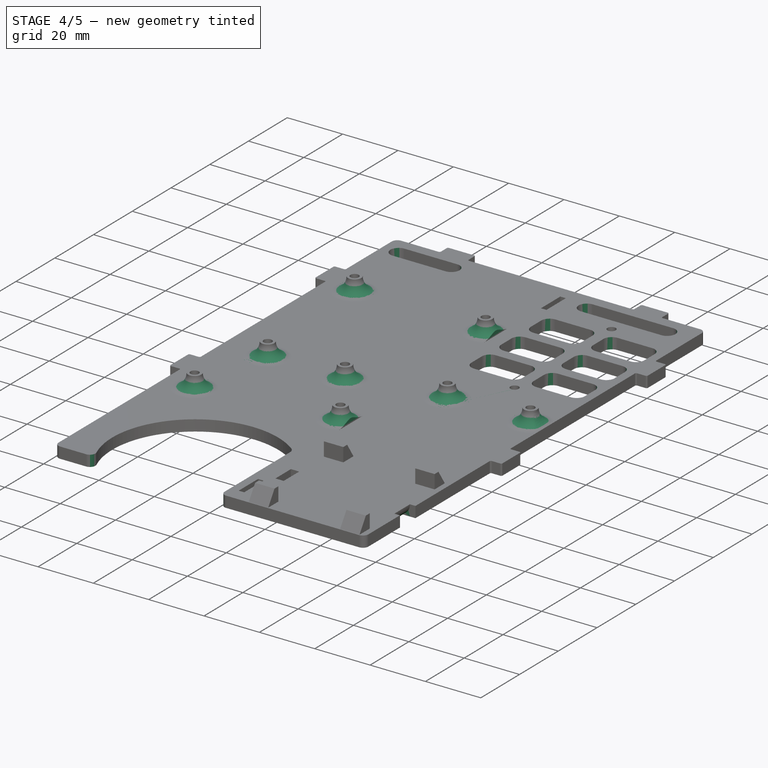
[diagram: stage 4 of 5 — iso view after this stage's code; geometry added in this stage tinted green]
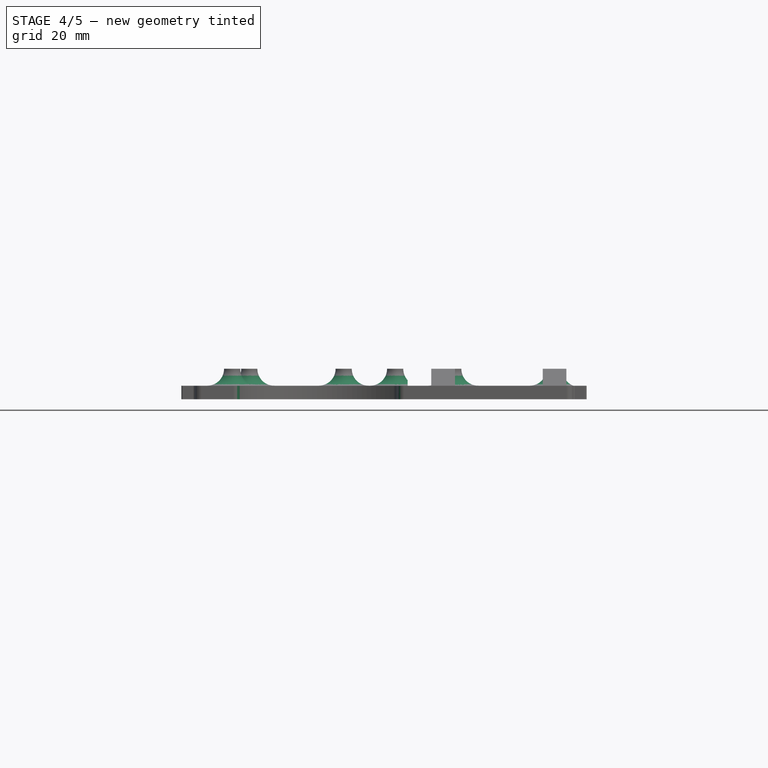
[diagram: stage 4 of 5 — front view after this stage's code; geometry added in this stage tinted green]
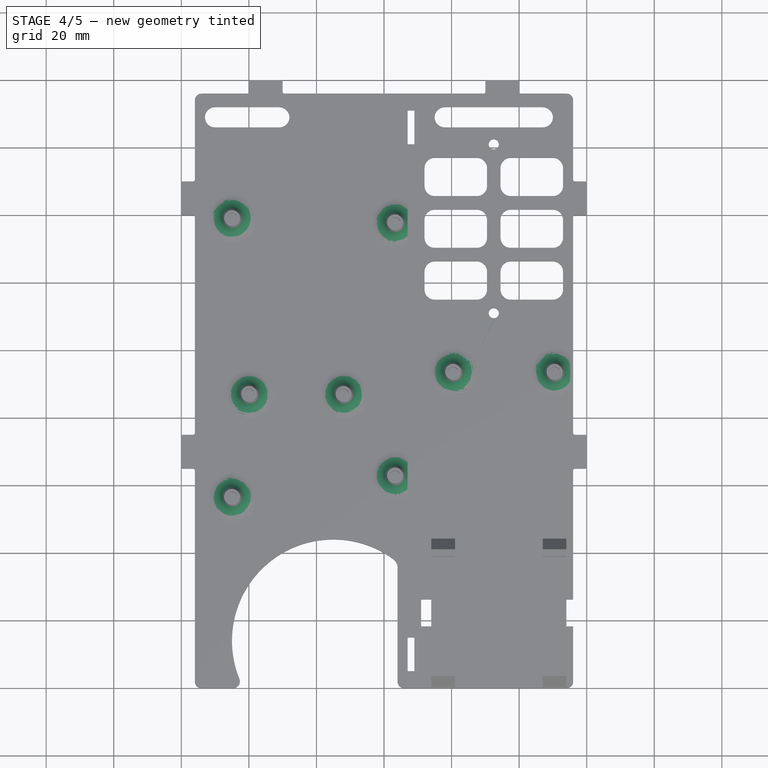
[diagram: stage 4 of 5 — top view after this stage's code; geometry added in this stage tinted green]
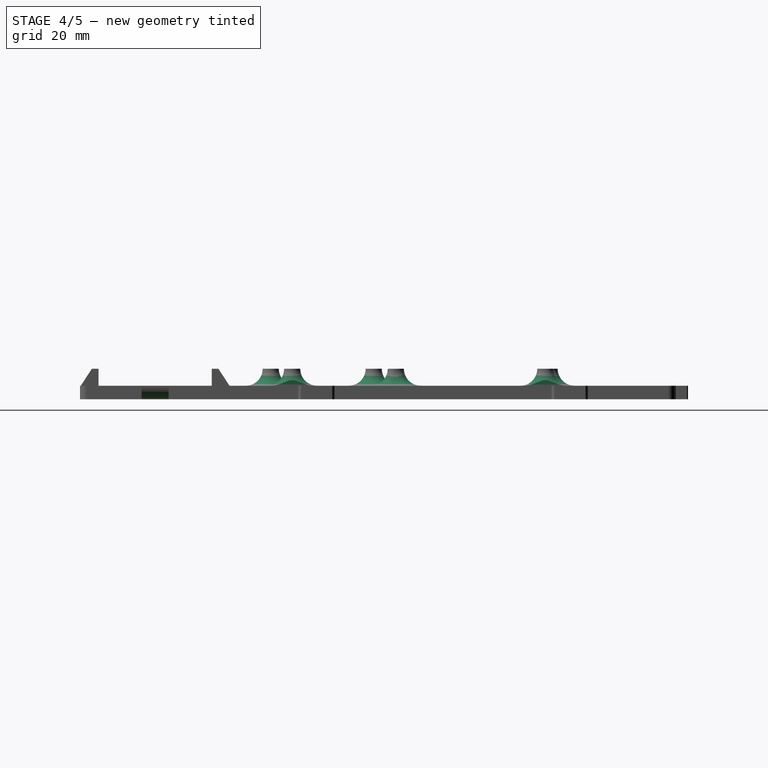
[diagram: stage 4 of 5 — right view after this stage's code; geometry added in this stage tinted green]
FEATURE [PartDesign::Fillet] Fillet002  label="ClipFillet1"
  Base = -> Pocket005 [Edge356,Edge352,Edge353,Edge357,Edge334,Edge354,Edge351,Edge355]
  BaseFeature = -> Pocket005
  Radius = 4.99
FEATURE [PartDesign::Pocket] Pocket006  label="ClipPocket"
  BaseFeature = -> Fillet002
  Length = 5
  Length2 = 100
  Profile = -> Sketch011
  Reversed = true
  Type = 1
FEATURE [PartDesign::Fillet] Fillet003  label="ClipFillet2"
  Base = -> Pocket006 [Edge153,Edge195]
  BaseFeature = -> Pocket006
  Radius = 3.99
FEATURE [PartDesign::Fillet] Fillet004  label="ClipFillet3"
  Base = -> Fillet003 [Edge337,Edge332,Edge335,Edge333,Edge316,Edge317,Edge319,Edge321,Edge265,Edge267,Edge273,Edge275,Edge299,Edge301,Edge303,Edge298,Edge277,Edge272,Edge269,Edge264,Edge257,Edge259,Edge281,Edge283,Edge291,Edge293,Edge295,Edge290,Edge285,Edge280,Edge261,Edge256,Edge146]
  BaseFeature = -> Fillet003
  Radius = 2.99
FEATURE [PartDesign::Fillet] Fillet005  label="ClipFillet5"
  Base = -> Fillet004 [Edge159,Edge151]
  BaseFeature = -> Fillet004
  Radius = 2
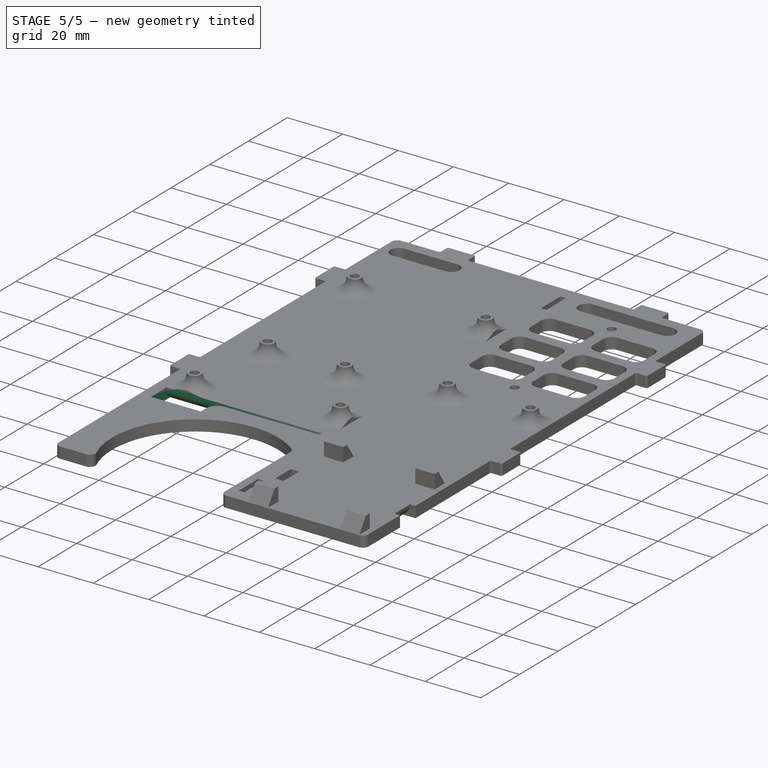
[diagram: stage 5 of 5 — iso view after this stage's code; geometry added in this stage tinted green]
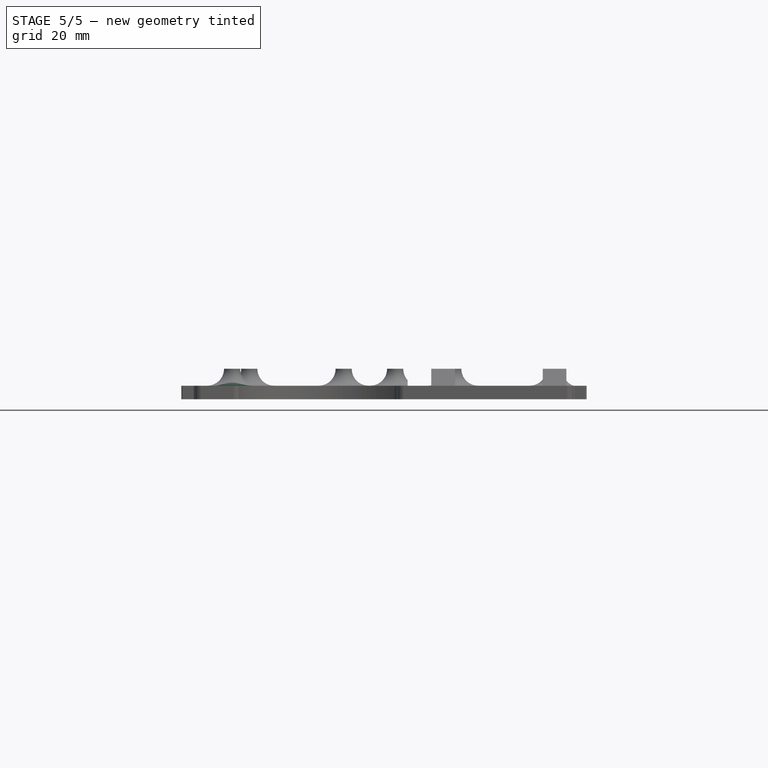
[diagram: stage 5 of 5 — front view after this stage's code; geometry added in this stage tinted green]
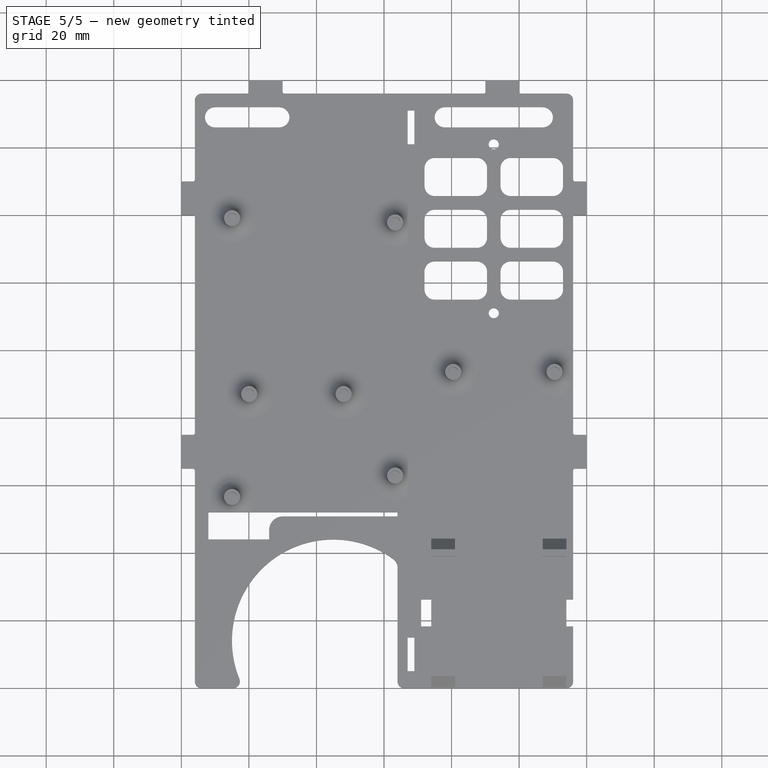
[diagram: stage 5 of 5 — top view after this stage's code; geometry added in this stage tinted green]
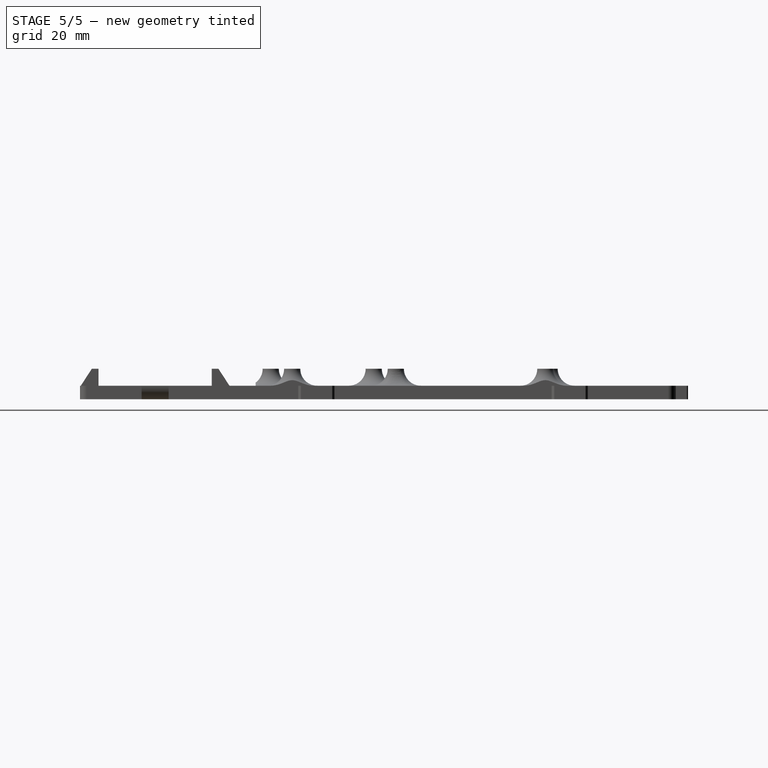
[diagram: stage 5 of 5 — right view after this stage's code; geometry added in this stage tinted green]
FEATURE [Sketcher::SketchObject] Sketch014  label="DisplayCordHoleSketch"
  MapMode = 5
  Placement = pos=(0,0,2) rot=(0,0,1;0rad)
  Support = -> [DatumPlane005]
  sketch-geometry (6):
    g0: LineSegment StartX=-52 StartY=-8 StartZ=0 EndX=-52 EndY=-16 EndZ=0
    g1: LineSegment StartX=-52 StartY=-16 StartZ=0 EndX=-34 EndY=-16 EndZ=0
    g2: LineSegment StartX=-52 StartY=-8 StartZ=0 EndX=4 EndY=-8 EndZ=0
    g3: LineSegment StartX=-34 StartY=-16 StartZ=0 EndX=-34 EndY=-9.2 EndZ=0
    g4: LineSegment StartX=-34 StartY=-9.2 StartZ=0 EndX=4 EndY=-9.2 EndZ=0
    g5: LineSegment StartX=4 StartY=-9.2 StartZ=0 EndX=4 EndY=-8 EndZ=0
  constraints (18):
    c: Vertical(g0)
    c: Coincident(g1,g0)
    c: Horizontal(g1)
    c: Coincident(g2,g0)
    c: Horizontal(g2)
    c: Coincident(g3,g1)
    c: Vertical(g3)
    c: Coincident(g4,g3)
    c: Horizontal(g4)
    c: Coincident(g5,g4)
    c: Coincident(g5,g2)
    c: Vertical(g5)
    c: Distance(g0) = 8
    c: Distance(g1) = 18
    c: Distance(g5) = 1.2
    c: DistanceX(g-2,g2) = 4
    c: Distance(g2) = 56
    c: DistanceY(g-1,g2) = -8
FEATURE [PartDesign::Pocket] Pocket007  label="DisplayCordHolePocket"
  BaseFeature = -> Fillet005
  Length = 5
  Length2 = 100
  Midplane = true
  Profile = -> Sketch014
  Type = 1
FEATURE [PartDesign::Fillet] Fillet006  label="ClipFillet6"
  Base = -> Pocket007 [Edge466]
  BaseFeature = -> Pocket007
  Radius = 4
FEATURE [PartDesign::Fillet] Fillet007  label="ClipFillet7"
  Base = -> Fillet006 [Edge7]
  BaseFeature = -> Fillet006
  Radius = 3
FEATURE [PartDesign::Body] Body  label="BlockBody"
  Group = -> [Sketch,Pad,Sketch004,Sketch005,Pocket001,Pocket,Fillet,Fillet001,Sketch006,DatumPlane,Pad001,Sketch007,DatumPlane001,Pocket002,Sketch008,DatumPlane002,Pad002,DatumPlane003,Sketch009,Pocket003,Sketch010,Pad003,Draft,DatumPlane004,Sketch011,Sketch012,Pocket004,DatumPlane005,Sketch013,Pocket005,Fillet002,Pocket006,Fillet003,Fillet004,Fillet005,Sketch014,Pocket007,Fillet006,Fillet007]
  Origin = -> Origin001
  Tip = -> Fillet007
FEATURE [App::Part] Part  label="BlockPart"
  Group = -> [Body]
  Origin = -> Origin
FEATURE [Part::FeaturePython] refine  label="BlockBody_Refined"  # WARN: FeaturePython — macro-defined, semantics opaque (R4)
  Base = -> Body
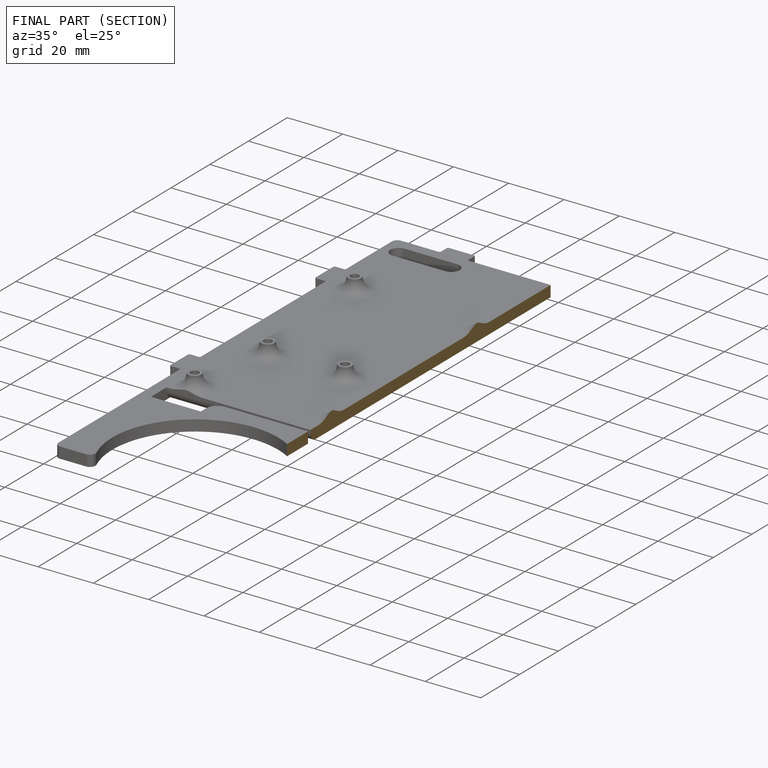
[diagram: finished part — half-section view (interior)]
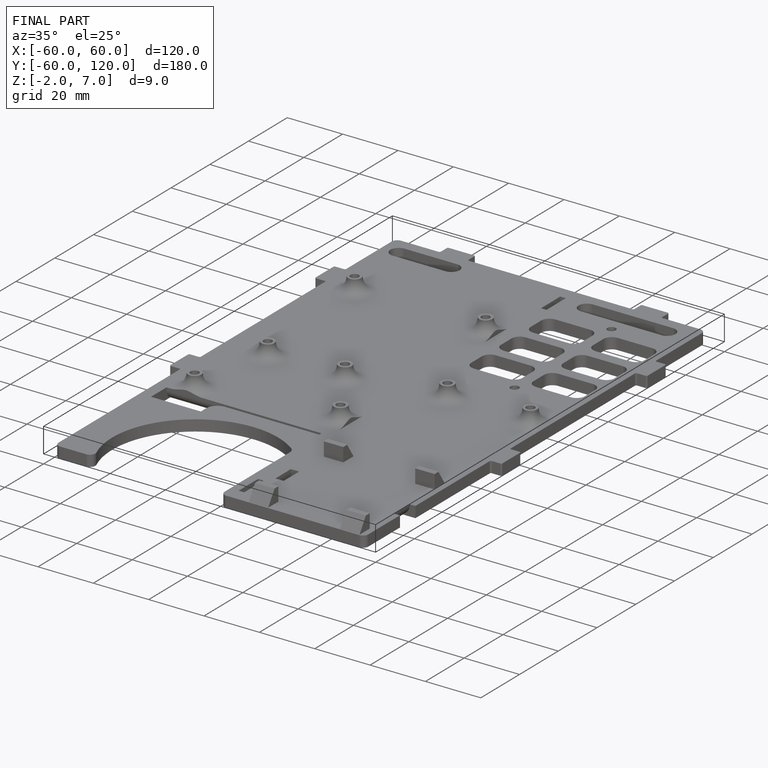
[diagram: finished part — iso view with bounding-box wireframe]
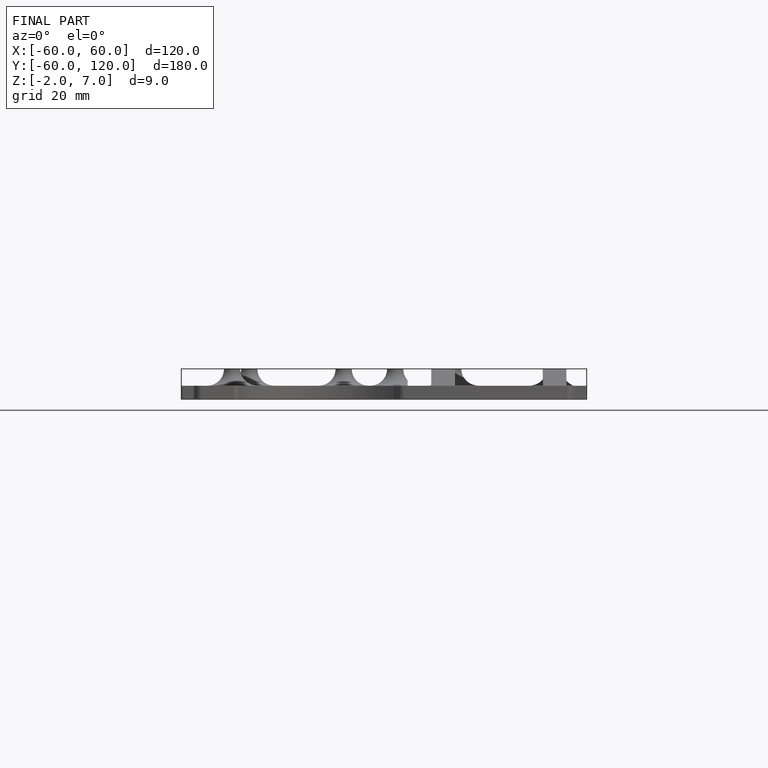
[diagram: finished part — front view with bounding-box wireframe]
